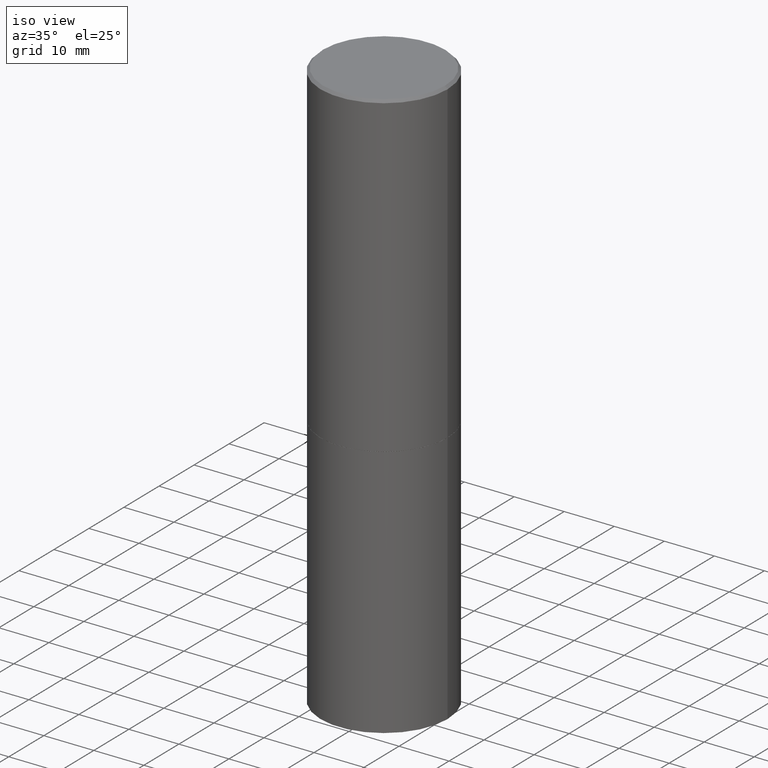
[diagram: clean part render]
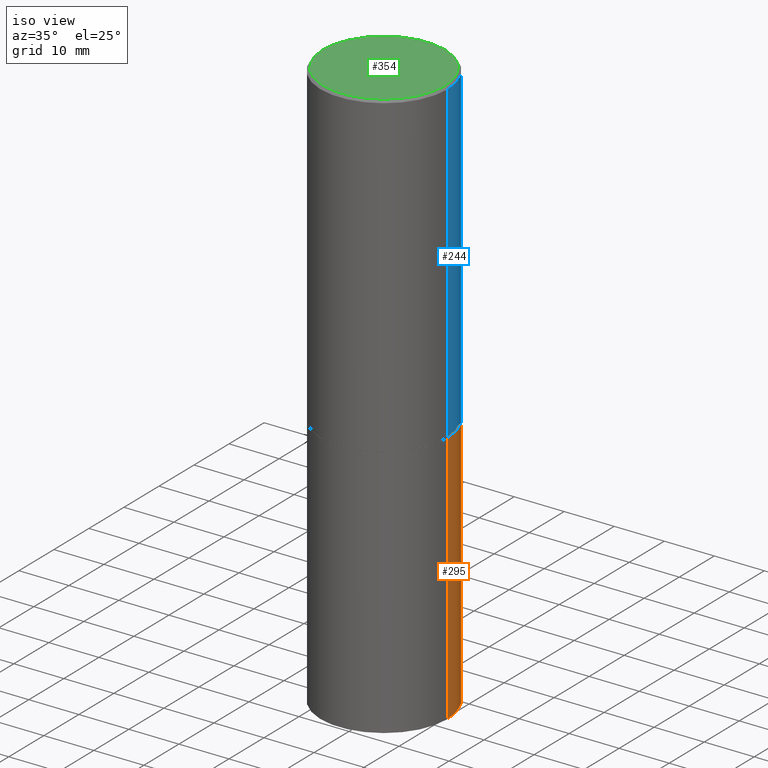
[diagram: same view with three faces highlighted in distinct colors, each labeled with its STEP entity id]
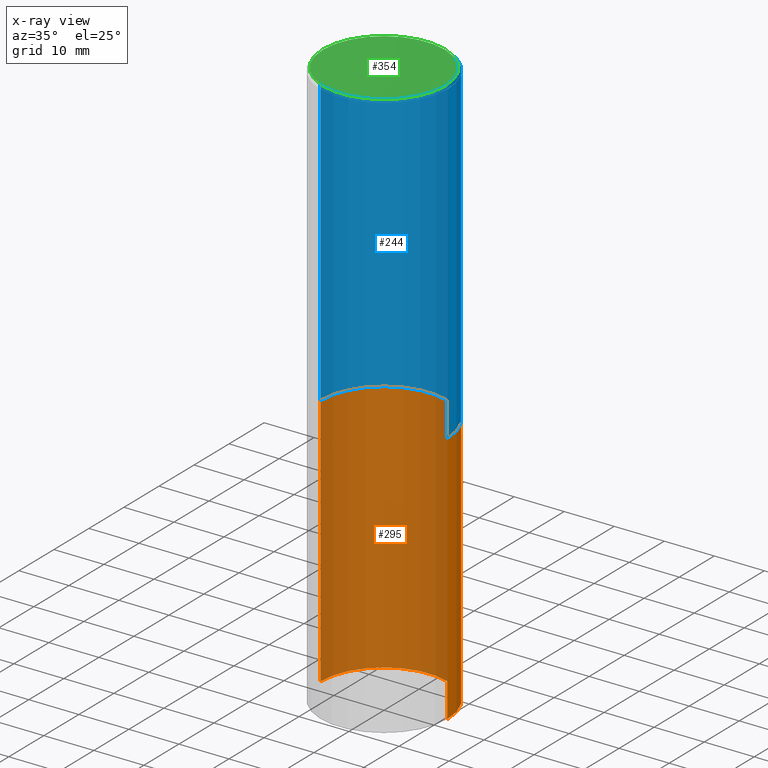
[diagram: x-ray of the same camera — body ghosted, the three highlighted faces saturated]
A machine part, iso view with three faces highlighted in distinct colors.
The next image is the same camera in x-ray (body ghosted, the three faces saturated) — at least one of them is partly hidden behind the body in this view.
Their STEP definitions:

[orange] entity #295 — the highlighted cylindrical surface (partial cylindrical patch) has radius 12.7 mm, axis along (-0, 0, 1).
#18 = CARTESIAN_POINT ( 'NONE',  ( -0.5000000000000000000, -8.667471007150509990E-15, -4.500000000000000000 ) ) ;
#20 = DIRECTION ( 'NONE',  ( 1.000000000000000000, -6.982962677686266711E-15, 0.000000000000000000 ) ) ;
#25 = FACE_OUTER_BOUND ( 'NONE', #60, .T. ) ;
#45 = EDGE_CURVE ( 'NONE', #172, #314, #263, .T. ) ;
#51 = LINE ( 'NONE', #252, #80 ) ;
#53 = CIRCLE ( 'NONE', #284, 0.5000000000000000000 ) ;
#54 = CARTESIAN_POINT ( 'NONE',  ( 0.000000000000000000, 0.000000000000000000, 0.000000000000000000 ) ) ;
#60 = EDGE_LOOP ( 'NONE', ( #323, #110, #113, #115 ) ) ;
#69 = DIRECTION ( 'NONE',  ( 1.000000000000000000, -6.982962677686269077E-15, 0.000000000000000000 ) ) ;
#71 = EDGE_CURVE ( 'NONE', #148, #314, #165, .T. ) ;
#80 = VECTOR ( 'NONE', #170, 39.37007874015748143 ) ;
#84 = DIRECTION ( 'NONE',  ( 1.000000000000000000, -6.982962677686266711E-15, 4.876176775795935793E-29 ) ) ;
#110 = ORIENTED_EDGE ( 'NONE', *, *, #71, .T. ) ;
#111 = CARTESIAN_POINT ( 'NONE',  ( 0.5000000000000000000, -1.920314736363729025E-14, -4.500000000000000000 ) ) ;
#113 = ORIENTED_EDGE ( 'NONE', *, *, #45, .F. ) ;
#115 = ORIENTED_EDGE ( 'NONE', *, *, #286, .F. ) ;
#127 = AXIS2_PLACEMENT_3D ( 'NONE', #54, #191, #84 ) ;
#137 = EDGE_CURVE ( 'NONE', #261, #148, #53, .T. ) ;
#148 = VERTEX_POINT ( 'NONE', #18 ) ;
#165 = LINE ( 'NONE', #168, #305 ) ;
#168 = CARTESIAN_POINT ( 'NONE',  ( -0.5000000000000000000, 3.552713678800500929E-15, -2.459467545127452891E-29 ) ) ;
#170 = DIRECTION ( 'NONE',  ( -2.445468806185136877E-29, 3.491481338843145188E-15, 1.000000000000000000 ) ) ;
#172 = VERTEX_POINT ( 'NONE', #279 ) ;
#191 = DIRECTION ( 'NONE',  ( -2.445468806185136597E-29, 3.491481338843145583E-15, 1.000000000000000000 ) ) ;
#238 = CARTESIAN_POINT ( 'NONE',  ( 6.113672015462842613E-29, -8.728703347107864943E-15, -2.500000000000000000 ) ) ;
#252 = CARTESIAN_POINT ( 'NONE',  ( 0.5000000000000000000, -3.491481338843133355E-15, 2.438088387897967896E-29 ) ) ;
#254 = CARTESIAN_POINT ( 'NONE',  ( -0.5000000000000000000, -8.667471007150509990E-15, -2.500000000000000000 ) ) ;
#261 = VERTEX_POINT ( 'NONE', #111 ) ;
#263 = CIRCLE ( 'NONE', #315, 0.5000000000000000000 ) ;
#271 = DIRECTION ( 'NONE',  ( -2.445468806185136877E-29, 3.491481338843145188E-15, 1.000000000000000000 ) ) ;
#276 = DIRECTION ( 'NONE',  ( -2.445468806185136597E-29, 3.491481338843145583E-15, 1.000000000000000000 ) ) ;
#279 = CARTESIAN_POINT ( 'NONE',  ( 0.5000000000000000000, -1.222018468595099830E-14, -2.500000000000000000 ) ) ;
#284 = AXIS2_PLACEMENT_3D ( 'NONE', #298, #276, #20 ) ;
#286 = EDGE_CURVE ( 'NONE', #261, #172, #51, .T. ) ;
#295 = ADVANCED_FACE ( 'NONE', ( #25 ), #360, .T. ) ;
#298 = CARTESIAN_POINT ( 'NONE',  ( 1.100460962783311469E-28, -1.571166602479415690E-14, -4.500000000000000000 ) ) ;
#305 = VECTOR ( 'NONE', #271, 39.37007874015748143 ) ;
#314 = VERTEX_POINT ( 'NONE', #254 ) ;
#315 = AXIS2_PLACEMENT_3D ( 'NONE', #238, #348, #69 ) ;
#323 = ORIENTED_EDGE ( 'NONE', *, *, #137, .T. ) ;
#348 = DIRECTION ( 'NONE',  ( -2.445468806185136597E-29, 3.491481338843145583E-15, 1.000000000000000000 ) ) ;
#360 = CYLINDRICAL_SURFACE ( 'NONE', #127, 0.5000000000000000000 ) ;

[blue] entity #244 — the highlighted cylindrical surface (partial cylindrical patch) has radius 12.7 mm, axis along (-0, 0, 1).
#16 = CARTESIAN_POINT ( 'NONE',  ( 4.890937612370296805E-31, -6.982962677686323656E-17, -0.02000000000000009409 ) ) ;
#17 = DIRECTION ( 'NONE',  ( -2.445468806185136597E-29, 3.491481338843145583E-15, 1.000000000000000000 ) ) ;
#19 = CARTESIAN_POINT ( 'NONE',  ( -0.5000000000000000000, -8.448070674724393209E-16, -2.499000000000000110 ) ) ;
#21 = DIRECTION ( 'NONE',  ( -2.445468806185136877E-29, 3.491481338843145188E-15, 1.000000000000000000 ) ) ;
#22 = FACE_OUTER_BOUND ( 'NONE', #85, .T. ) ;
#30 = CIRCLE ( 'NONE', #248, 0.5000000000000000000 ) ;
#36 = CARTESIAN_POINT ( 'NONE',  ( 0.000000000000000000, 0.000000000000000000, 0.000000000000000000 ) ) ;
#37 = DIRECTION ( 'NONE',  ( -2.445468806185136597E-29, 3.491481338843145583E-15, 1.000000000000000000 ) ) ;
#41 = AXIS2_PLACEMENT_3D ( 'NONE', #36, #17, #205 ) ;
#57 = CARTESIAN_POINT ( 'NONE',  ( 0.4999999999999997780, -3.491481338843131778E-15, 2.438088387897966775E-29 ) ) ;
#58 = DIRECTION ( 'NONE',  ( -2.445468806185136877E-29, 3.491481338843145188E-15, 1.000000000000000000 ) ) ;
#62 = EDGE_CURVE ( 'NONE', #344, #126, #185, .T. ) ;
#77 = CARTESIAN_POINT ( 'NONE',  ( 0.5000000000000000000, -1.221669320461215371E-14, -2.499000000000000110 ) ) ;
#85 = EDGE_LOOP ( 'NONE', ( #151, #200, #310, #317 ) ) ;
#89 = VERTEX_POINT ( 'NONE', #77 ) ;
#126 = VERTEX_POINT ( 'NONE', #134 ) ;
#134 = CARTESIAN_POINT ( 'NONE',  ( -0.4999999999999996114, 3.421651712066267296E-15, -0.02000000000000009409 ) ) ;
#136 = DIRECTION ( 'NONE',  ( -2.445468806185136597E-29, 3.491481338843145583E-15, 1.000000000000000000 ) ) ;
#143 = CARTESIAN_POINT ( 'NONE',  ( 0.4999999999999996114, -3.500078625662626318E-15, -0.02000000000000009409 ) ) ;
#145 = LINE ( 'NONE', #357, #328 ) ;
#151 = ORIENTED_EDGE ( 'NONE', *, *, #220, .T. ) ;
#169 = VECTOR ( 'NONE', #58, 39.37007874015748143 ) ;
#185 = CIRCLE ( 'NONE', #196, 0.4999999999999996114 ) ;
#196 = AXIS2_PLACEMENT_3D ( 'NONE', #16, #136, #273 ) ;
#200 = ORIENTED_EDGE ( 'NONE', *, *, #327, .T. ) ;
#205 = DIRECTION ( 'NONE',  ( 1.000000000000000000, -6.982962677686266711E-15, 4.876176775795935793E-29 ) ) ;
#214 = DIRECTION ( 'NONE',  ( 1.000000000000000000, -6.982962677686265133E-15, 0.000000000000000000 ) ) ;
#220 = EDGE_CURVE ( 'NONE', #89, #287, #30, .T. ) ;
#237 = CARTESIAN_POINT ( 'NONE',  ( 6.111226546656657010E-29, -8.725211865769021935E-15, -2.499000000000000110 ) ) ;
#244 = ADVANCED_FACE ( 'NONE', ( #22 ), #309, .T. ) ;
#248 = AXIS2_PLACEMENT_3D ( 'NONE', #237, #37, #214 ) ;
#273 = DIRECTION ( 'NONE',  ( 1.000000000000000000, -6.982962677686266711E-15, 0.000000000000000000 ) ) ;
#287 = VERTEX_POINT ( 'NONE', #19 ) ;
#309 = CYLINDRICAL_SURFACE ( 'NONE', #41, 0.4999999999999997780 ) ;
#310 = ORIENTED_EDGE ( 'NONE', *, *, #62, .F. ) ;
#317 = ORIENTED_EDGE ( 'NONE', *, *, #346, .F. ) ;
#327 = EDGE_CURVE ( 'NONE', #287, #126, #145, .T. ) ;
#328 = VECTOR ( 'NONE', #21, 39.37007874015748143 ) ;
#332 = LINE ( 'NONE', #57, #169 ) ;
#344 = VERTEX_POINT ( 'NONE', #143 ) ;
#346 = EDGE_CURVE ( 'NONE', #89, #344, #332, .T. ) ;
#357 = CARTESIAN_POINT ( 'NONE',  ( -0.4999999999999997780, 3.552713678800499352E-15, -2.459467545127452050E-29 ) ) ;

[green] entity #354 — the highlighted planar face has unit normal (0, -0, -1).
#47 = DIRECTION ( 'NONE',  ( 1.000000000000000000, -6.982962677686266711E-15, 4.876036955247133888E-29 ) ) ;
#74 = CIRCLE ( 'NONE', #141, 0.4799999999999995381 ) ;
#82 = CARTESIAN_POINT ( 'NONE',  ( -0.4799999999999995381, 3.386736898677836041E-15, 1.280553747027767124E-17 ) ) ;
#95 = ORIENTED_EDGE ( 'NONE', *, *, #331, .T. ) ;
#99 = ORIENTED_EDGE ( 'NONE', *, *, #142, .T. ) ;
#108 = CARTESIAN_POINT ( 'NONE',  ( 3.351822085289404392E-15, 0.4799999999999995381, -1.669508273909557670E-15 ) ) ;
#124 = VERTEX_POINT ( 'NONE', #193 ) ;
#141 = AXIS2_PLACEMENT_3D ( 'NONE', #256, #201, #311 ) ;
#142 = EDGE_CURVE ( 'NONE', #270, #124, #352, .T. ) ;
#162 = CARTESIAN_POINT ( 'NONE',  ( -3.131554243005659264E-46, 4.471029511141341874E-32, 1.280553747030123384E-17 ) ) ;
#166 = PLANE ( 'NONE',  #223 ) ;
#193 = CARTESIAN_POINT ( 'NONE',  ( 0.4799999999999995381, -3.396558832296479338E-15, 1.280553747032483033E-17 ) ) ;
#201 = DIRECTION ( 'NONE',  ( -2.445468806185136597E-29, 3.491481338843145583E-15, 1.000000000000000000 ) ) ;
#212 = AXIS2_PLACEMENT_3D ( 'NONE', #162, #300, #47 ) ;
#223 = AXIS2_PLACEMENT_3D ( 'NONE', #108, #225, #227 ) ;
#225 = DIRECTION ( 'NONE',  ( 2.438088387897960049E-29, -3.491481338843145188E-15, -1.000000000000000000 ) ) ;
#227 = DIRECTION ( 'NONE',  ( -1.000000000000000000, 6.982962677686265922E-15, -4.876176775795935793E-29 ) ) ;
#256 = CARTESIAN_POINT ( 'NONE',  ( -3.131554243005659264E-46, 4.471029511141341874E-32, 1.280553747030123384E-17 ) ) ;
#270 = VERTEX_POINT ( 'NONE', #82 ) ;
#300 = DIRECTION ( 'NONE',  ( -2.445468806185136597E-29, 3.491481338843145583E-15, 1.000000000000000000 ) ) ;
#311 = DIRECTION ( 'NONE',  ( 1.000000000000000000, -6.982962677686266711E-15, 4.876036955247133888E-29 ) ) ;
#331 = EDGE_CURVE ( 'NONE', #124, #270, #74, .T. ) ;
#335 = EDGE_LOOP ( 'NONE', ( #99, #95 ) ) ;
#340 = FACE_OUTER_BOUND ( 'NONE', #335, .T. ) ;
#352 = CIRCLE ( 'NONE', #212, 0.4799999999999995381 ) ;
#354 = ADVANCED_FACE ( 'NONE', ( #340 ), #166, .F. ) ;